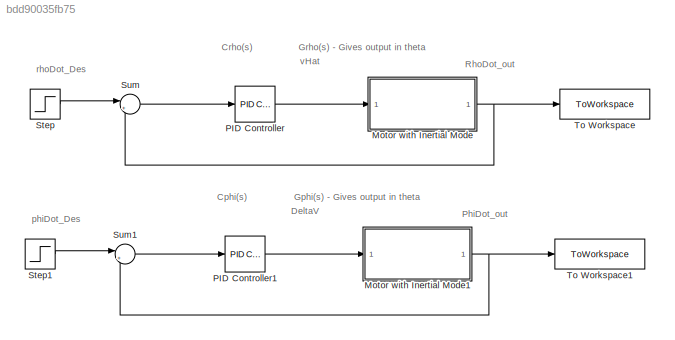
MODEL slx_bdd90035fb75
KIND model
CONFIG AbsTol = auto
CONFIG EnableMultiTasking = off
CONFIG FixedStep = auto
CONFIG MaxStep = auto
CONFIG MinStep = auto
CONFIG RelTol = 1e-3
CONFIG SampleTimeConstraint = Unconstrained
CONFIG SolverName = VariableStepAuto
CONFIG StartTime = 0.0
CONFIG StopTime = 10.0
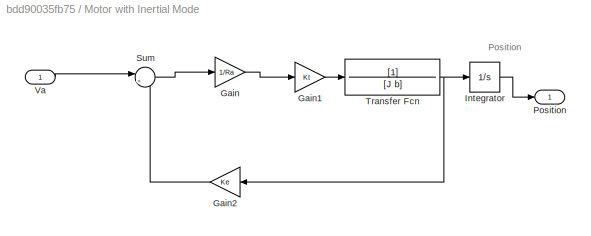
BLOCK [SubSystem] Motor with Inertial Mode
  Ports = [1, 1]
  RequestExecContextInheritance = off
BLOCK [Gain] Motor with Inertial Mode/Gain
  Gain = 1/Ra
BLOCK [Gain] Motor with Inertial Mode/Gain1
  Gain = Kt
BLOCK [Gain] Motor with Inertial Mode/Gain2
  Gain = Ke
BLOCK [Integrator] Motor with Inertial Mode/Integrator
  Ports = [1, 1]
BLOCK [Outport] Motor with Inertial Mode/Position
BLOCK [Sum] Motor with Inertial Mode/Sum
  Inputs = |+-
  Ports = [2, 1]
BLOCK [TransferFcn] Motor with Inertial Mode/Transfer Fcn
  Denominator = [J b]
BLOCK [Inport] Motor with Inertial Mode/Va
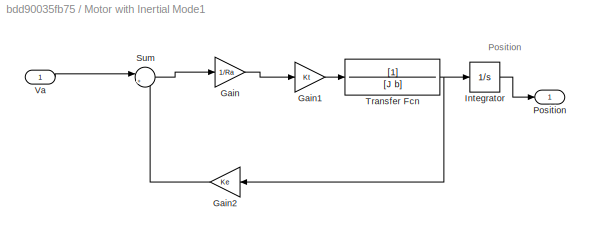
BLOCK [SubSystem] Motor with Inertial Mode1
  Ports = [1, 1]
  RequestExecContextInheritance = off
BLOCK [Gain] Motor with Inertial Mode1/Gain
  Gain = 1/Ra
BLOCK [Gain] Motor with Inertial Mode1/Gain1
  Gain = Kt
BLOCK [Gain] Motor with Inertial Mode1/Gain2
  Gain = Ke
BLOCK [Integrator] Motor with Inertial Mode1/Integrator
  Ports = [1, 1]
BLOCK [Outport] Motor with Inertial Mode1/Position
BLOCK [Sum] Motor with Inertial Mode1/Sum
  Inputs = |+-
  Ports = [2, 1]
BLOCK [TransferFcn] Motor with Inertial Mode1/Transfer Fcn
  Denominator = [J b]
BLOCK [Inport] Motor with Inertial Mode1/Va
BLOCK [Reference] PID Controller  REF=slpidlib/PID Controller
  Ports = [1, 1]
  SourceBlock = slpidlib/PID Controller
  SourceProductBaseCode = SL
  SourceType = PID 1dof
BLOCK [Reference] PID Controller1  REF=slpidlib/PID Controller
  Ports = [1, 1]
  SourceBlock = slpidlib/PID Controller
  SourceProductBaseCode = SL
  SourceType = PID 1dof
BLOCK [Step] Step
  SampleTime = 0
BLOCK [Step] Step1
  SampleTime = 0
BLOCK [Sum] Sum
  Inputs = |+-
  Ports = [2, 1]
BLOCK [Sum] Sum1
  Inputs = |+-
  Ports = [2, 1]
BLOCK [ToWorkspace] To Workspace
  FixptAsFi = on
  MaxDataPoints = inf
  Ports = [1]
  SampleTime = -1
  SaveFormat = Timeseries
  VariableName = latSpeed
BLOCK [ToWorkspace] To Workspace1
  FixptAsFi = on
  MaxDataPoints = inf
  Ports = [1]
  SampleTime = -1
  SaveFormat = Timeseries
  VariableName = turnSpeed
ANNOTATION (root): Cphi(s)
ANNOTATION (root): Crho(s)
ANNOTATION (root): DeltaV
ANNOTATION (root): Gphi(s) - Gives output in theta
ANNOTATION (root): Grho(s) - Gives output in theta
ANNOTATION (root): PhiDot_out
ANNOTATION (root): RhoDot_out
ANNOTATION (root): phiDot_Des
ANNOTATION (root): rhoDot_Des
ANNOTATION (root): vHat
ANNOTATION Motor with Inertial Mode: Position
ANNOTATION Motor with Inertial Mode1: Position
LINE Motor with Inertial Mode/Gain1:1 -> Motor with Inertial Mode/Transfer Fcn:1
LINE Motor with Inertial Mode/Gain2:1 -> Motor with Inertial Mode/Sum:2
LINE Motor with Inertial Mode/Gain:1 -> Motor with Inertial Mode/Gain1:1
LINE Motor with Inertial Mode/Integrator:1 -> Motor with Inertial Mode/Position:1
LINE Motor with Inertial Mode/Sum:1 -> Motor with Inertial Mode/Gain:1
NET Motor with Inertial Mode/Transfer Fcn:1 -> Motor with Inertial Mode/Gain2:1, Motor with Inertial Mode/Integrator:1
LINE Motor with Inertial Mode/Va:1 -> Motor with Inertial Mode/Sum:1
LINE Motor with Inertial Mode1/Gain1:1 -> Motor with Inertial Mode1/Transfer Fcn:1
LINE Motor with Inertial Mode1/Gain2:1 -> Motor with Inertial Mode1/Sum:2
LINE Motor with Inertial Mode1/Gain:1 -> Motor with Inertial Mode1/Gain1:1
LINE Motor with Inertial Mode1/Integrator:1 -> Motor with Inertial Mode1/Position:1
LINE Motor with Inertial Mode1/Sum:1 -> Motor with Inertial Mode1/Gain:1
NET Motor with Inertial Mode1/Transfer Fcn:1 -> Motor with Inertial Mode1/Gain2:1, Motor with Inertial Mode1/Integrator:1
LINE Motor with Inertial Mode1/Va:1 -> Motor with Inertial Mode1/Sum:1
NET Motor with Inertial Mode1:1 -> Sum1:2, To Workspace1:1
NET Motor with Inertial Mode:1 -> Sum:2, To Workspace:1
LINE PID Controller1:1 -> Motor with Inertial Mode1:1
LINE PID Controller:1 -> Motor with Inertial Mode:1
LINE Step1:1 -> Sum1:1
LINE Step:1 -> Sum:1
LINE Sum1:1 -> PID Controller1:1
LINE Sum:1 -> PID Controller:1
note: NET lines group one-source signal fan-out (src -> all destinations, sorted); 1:1 wires keep LINE
